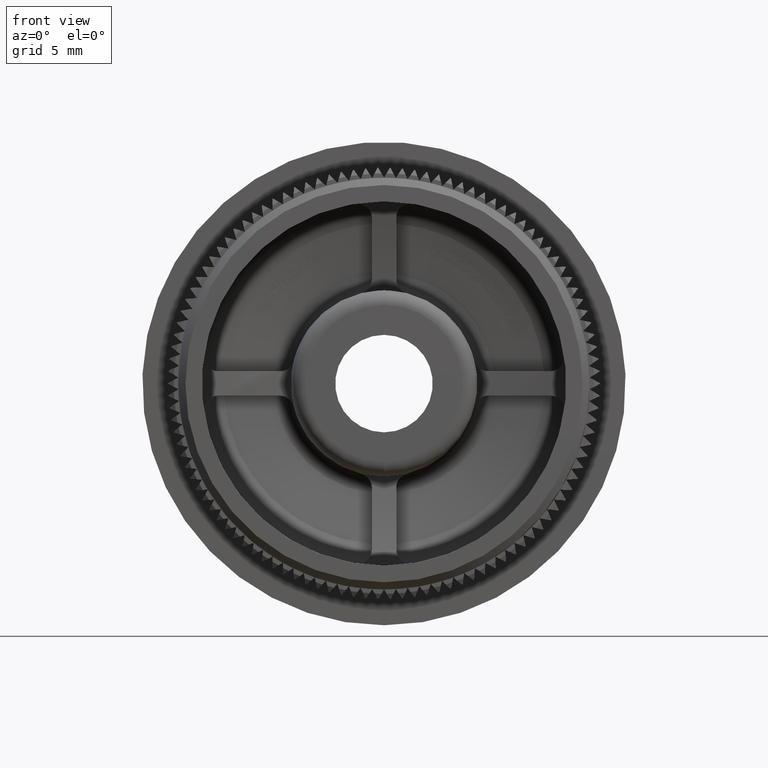
[diagram: clean part render]
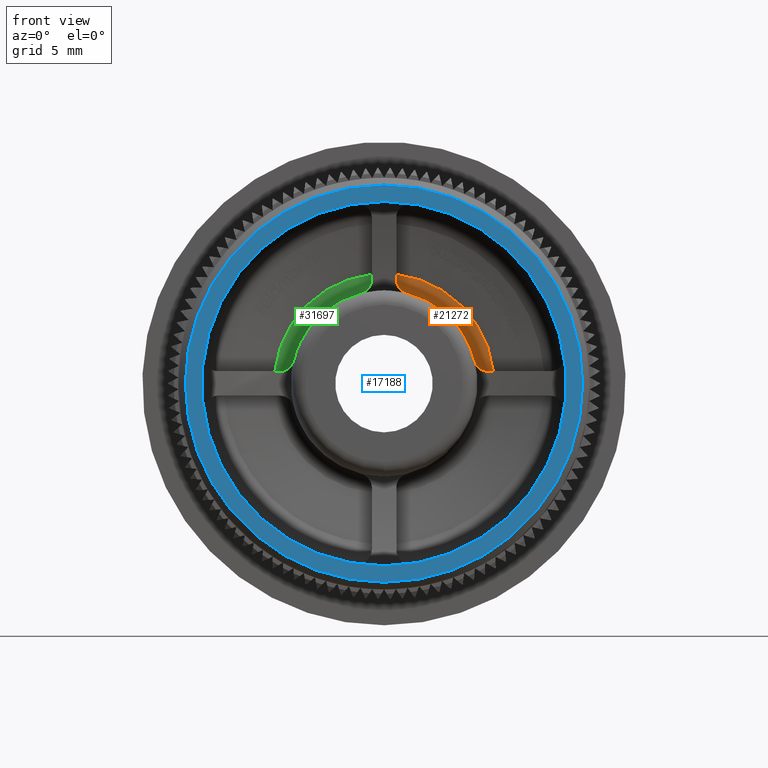
[diagram: same view with three faces highlighted in distinct colors, each labeled with its STEP entity id]
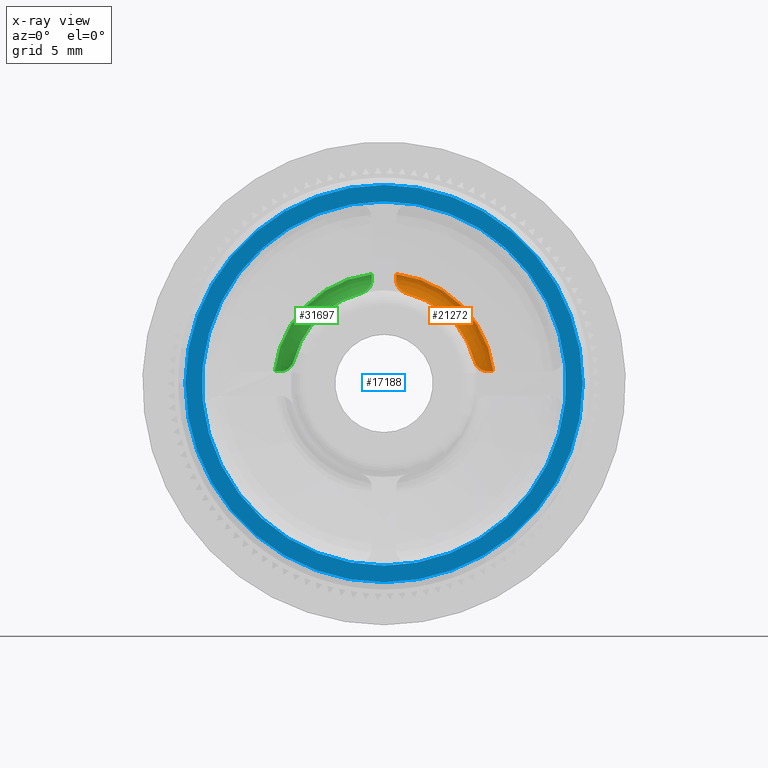
[diagram: x-ray of the same camera — body ghosted, the three highlighted faces saturated]
A machine part, front view with three faces highlighted in distinct colors.
The next image is the same camera in x-ray (body ghosted, the three faces saturated) — at least one of them is partly hidden behind the body in this view.
Their STEP definitions:

[orange] entity #21272 — the highlighted toroidal blend (fillet) surface has major radius 7.5 mm and minor (blend) radius 1 mm.
#688 = CARTESIAN_POINT ( 'NONE',  ( 0.8790775798944566700, 14.77216719665394100, 6.999871553319741800 ) ) ;
#938 = CARTESIAN_POINT ( 'NONE',  ( 1.255239687825497700, 14.27056494195557000, 6.458473567425125200 ) ) ;
#1105 = B_SPLINE_CURVE_WITH_KNOTS ( 'NONE', 3,
 ( #3388, #9328, #24408, #15303 ),
 .UNSPECIFIED., .F., .F.,
 ( 4, 4 ),
 ( 1.734723475976807100E-018, 0.0003518477657030654300 ),
 .UNSPECIFIED. ) ;
#1984 = DIRECTION ( 'NONE',  ( 0.0000000000000000000, 0.0000000000000000000, -1.000000000000000000 ) ) ;
#2090 = CARTESIAN_POINT ( 'NONE',  ( 6.299152500314804100, 13.86804053851165000, 1.603333333333333700 ) ) ;
#2591 = AXIS2_PLACEMENT_3D ( 'NONE', #9323, #36571, #6267 ) ;
#3388 = CARTESIAN_POINT ( 'NONE',  ( 7.620073336015035900, 14.85394072622485800, 0.8499999999999999800 ) ) ;
#3661 = CIRCLE ( 'NONE', #2591, 6.500000000000000900 ) ;
#3673 = CARTESIAN_POINT ( 'NONE',  ( 0.9714209832405628100, 14.63364727797940800, 6.775487427223492200 ) ) ;
#4189 = CIRCLE ( 'NONE', #7092, 7.667334455092414700 ) ;
#5700 = TOROIDAL_SURFACE ( 'NONE', #8429, 7.500000000000000900, 1.000000000000000000 ) ;
#6267 = DIRECTION ( 'NONE',  ( 0.0000000000000000000, 0.0000000000000000000, -1.000000000000000000 ) ) ;
#7040 = VERTEX_POINT ( 'NONE', #14613 ) ;
#7092 = AXIS2_PLACEMENT_3D ( 'NONE', #29444, #11308, #8707 ) ;
#7235 = CARTESIAN_POINT ( 'NONE',  ( 1.603333333333335100, 13.86804053851165000, 6.299152500314802300 ) ) ;
#7800 = CARTESIAN_POINT ( 'NONE',  ( 7.129028428376815700, 14.82567368482291700, 0.8499999999999997600 ) ) ;
#8429 = AXIS2_PLACEMENT_3D ( 'NONE', #13786, #10532, #1984 ) ;
#8707 = DIRECTION ( 'NONE',  ( 0.0000000000000000000, 0.0000000000000000000, -1.000000000000000000 ) ) ;
#8975 = EDGE_CURVE ( 'NONE', #9997, #9363, #1105, .T. ) ;
#9250 = CARTESIAN_POINT ( 'NONE',  ( 0.8500000000000020900, 14.85129953738535500, 7.268252884978568100 ) ) ;
#9323 = CARTESIAN_POINT ( 'NONE',  ( 0.0000000000000000000, 13.86804053851165000, 0.0000000000000000000 ) ) ;
#9328 = CARTESIAN_POINT ( 'NONE',  ( 7.502758279134808600, 14.87372959292794900, 0.8500000000000002000 ) ) ;
#9363 = VERTEX_POINT ( 'NONE', #11455 ) ;
#9482 = CARTESIAN_POINT ( 'NONE',  ( 1.175453291360995900, 14.36849673847160400, 6.522503219253547300 ) ) ;
#9515 = B_SPLINE_CURVE_WITH_KNOTS ( 'NONE', 3,
 ( #16673, #16546, #37553, #19564, #25773, #10945, #7800, #16928 ),
 .UNSPECIFIED., .F., .F.,
 ( 4, 2, 2, 4 ),
 ( -6.324562137052363300E-006, 0.0008268389205757691400, 0.001243420661932181700, 0.001660002403288594200 ),
 .UNSPECIFIED. ) ;
#9955 = FACE_OUTER_BOUND ( 'NONE', #15020, .T. ) ;
#9997 = VERTEX_POINT ( 'NONE', #15050 ) ;
#10532 = DIRECTION ( 'NONE',  ( -0.0000000000000000000, -1.000000000000000000, -0.0000000000000000000 ) ) ;
#10945 = CARTESIAN_POINT ( 'NONE',  ( 6.999871002189516700, 14.77216696646000900, 0.8790777049772148200 ) ) ;
#11308 = DIRECTION ( 'NONE',  ( 0.0000000000000000000, 1.000000000000000000, 0.0000000000000000000 ) ) ;
#11455 = CARTESIAN_POINT ( 'NONE',  ( 7.268252884978301700, 14.85129953738530700, 0.8499999999999999800 ) ) ;
#12465 = EDGE_CURVE ( 'NONE', #31879, #16942, #22263, .T. ) ;
#13786 = CARTESIAN_POINT ( 'NONE',  ( 0.0000000000000000000, 13.86804053851771500, 0.0000000000000000000 ) ) ;
#13910 = CARTESIAN_POINT ( 'NONE',  ( 0.8500000000000020900, 14.85129953738535500, 7.268252884978568100 ) ) ;
#14613 = CARTESIAN_POINT ( 'NONE',  ( 0.8500000000000020900, 14.85394072622485800, 7.620073336015036800 ) ) ;
#15020 = EDGE_LOOP ( 'NONE', ( #31377, #19279, #37700, #31895, #38473, #28201 ) ) ;
#15050 = CARTESIAN_POINT ( 'NONE',  ( 7.620073336015035900, 14.85394072622485800, 0.8499999999999999800 ) ) ;
#15303 = CARTESIAN_POINT ( 'NONE',  ( 7.268252884978301700, 14.85129953738530700, 0.8499999999999999800 ) ) ;
#15735 = CARTESIAN_POINT ( 'NONE',  ( 1.422640335576024700, 14.07197896892791700, 6.358942107906917900 ) ) ;
#16546 = CARTESIAN_POINT ( 'NONE',  ( 6.345830554578243200, 14.07131176089800000, 1.419945277892556800 ) ) ;
#16673 = CARTESIAN_POINT ( 'NONE',  ( 6.299152500314804100, 13.86804053851165000, 1.603333333333333700 ) ) ;
#16916 = CARTESIAN_POINT ( 'NONE',  ( 0.8500000000000020900, 14.87268343585587100, 7.384430937487708800 ) ) ;
#16928 = CARTESIAN_POINT ( 'NONE',  ( 7.268252884978301700, 14.85129953738530700, 0.8499999999999999800 ) ) ;
#16942 = VERTEX_POINT ( 'NONE', #7235 ) ;
#17446 = CARTESIAN_POINT ( 'NONE',  ( 0.8500000000000020900, 14.85394072622485800, 7.620073336015036800 ) ) ;
#18876 = CARTESIAN_POINT ( 'NONE',  ( 1.511588002755060600, 13.96973301488860600, 6.322504585644770400 ) ) ;
#19279 = ORIENTED_EDGE ( 'NONE', *, *, #19343, .T. ) ;
#19343 = EDGE_CURVE ( 'NONE', #35512, #9363, #9515, .T. ) ;
#19564 = CARTESIAN_POINT ( 'NONE',  ( 6.679878287175380800, 14.54878761127260700, 1.034542339558018900 ) ) ;
#21272 = ADVANCED_FACE ( 'NONE', ( #9955 ), #5700, .F. ) ;
#21518 = CARTESIAN_POINT ( 'NONE',  ( 0.8500000000000019800, 14.82567373941845500, 7.129028724992384300 ) ) ;
#22263 = B_SPLINE_CURVE_WITH_KNOTS ( 'NONE', 3,
 ( #27942, #21518, #688, #3673, #27686, #9482, #938, #15735, #18876, #36740 ),
 .UNSPECIFIED., .F., .F.,
 ( 4, 2, 2, 2, 4 ),
 ( 4.734389488721271400E-017, 0.0004168148190684897900, 0.0008336296381369323000, 0.001250444457205374500, 0.001667259276273817100 ),
 .UNSPECIFIED. ) ;
#24408 = CARTESIAN_POINT ( 'NONE',  ( 7.385032248118837300, 14.87279411395049200, 0.8499999999999999800 ) ) ;
#25773 = CARTESIAN_POINT ( 'NONE',  ( 6.775486544210340700, 14.63364662282737200, 0.9714214483681171700 ) ) ;
#26541 = CARTESIAN_POINT ( 'NONE',  ( 0.8500000000000022000, 14.87372012914404500, 7.502814383682113500 ) ) ;
#27686 = CARTESIAN_POINT ( 'NONE',  ( 1.034541662790500400, 14.54878851291676200, 6.679879256796419400 ) ) ;
#27942 = CARTESIAN_POINT ( 'NONE',  ( 0.8500000000000020900, 14.85129953738535500, 7.268252884978568100 ) ) ;
#28201 = ORIENTED_EDGE ( 'NONE', *, *, #12465, .T. ) ;
#29444 = CARTESIAN_POINT ( 'NONE',  ( 0.0000000000000000000, 14.85394072622484400, 0.0000000000000000000 ) ) ;
#31377 = ORIENTED_EDGE ( 'NONE', *, *, #38152, .F. ) ;
#31879 = VERTEX_POINT ( 'NONE', #9250 ) ;
#31895 = ORIENTED_EDGE ( 'NONE', *, *, #37402, .F. ) ;
#33673 = EDGE_CURVE ( 'NONE', #31879, #7040, #35440, .T. ) ;
#35440 = B_SPLINE_CURVE_WITH_KNOTS ( 'NONE', 3,
 ( #13910, #16916, #26541, #17446 ),
 .UNSPECIFIED., .F., .F.,
 ( 4, 4 ),
 ( 0.001385207896104129300, 0.001736940897184749200 ),
 .UNSPECIFIED. ) ;
#35512 = VERTEX_POINT ( 'NONE', #2090 ) ;
#36571 = DIRECTION ( 'NONE',  ( -0.0000000000000000000, -1.000000000000000000, -0.0000000000000000000 ) ) ;
#36740 = CARTESIAN_POINT ( 'NONE',  ( 1.603333333333335100, 13.86804053851165000, 6.299152500314802300 ) ) ;
#37402 = EDGE_CURVE ( 'NONE', #7040, #9997, #4189, .T. ) ;
#37553 = CARTESIAN_POINT ( 'NONE',  ( 6.443814122135171000, 14.27834919754909000, 1.245910454008940300 ) ) ;
#37700 = ORIENTED_EDGE ( 'NONE', *, *, #8975, .F. ) ;
#38152 = EDGE_CURVE ( 'NONE', #35512, #16942, #3661, .T. ) ;
#38473 = ORIENTED_EDGE ( 'NONE', *, *, #33673, .F. ) ;

[blue] entity #17188 — the highlighted planar face has unit normal (0, -1, -0).
#3899 = DIRECTION ( 'NONE',  ( -0.0000000000000000000, -1.000000000000000000, -0.0000000000000000000 ) ) ;
#4029 = CARTESIAN_POINT ( 'NONE',  ( 0.0000000000000000000, 0.0000000000000000000, 0.0000000000000000000 ) ) ;
#4547 = DIRECTION ( 'NONE',  ( 0.0000000000000000000, 0.0000000000000000000, -1.000000000000000000 ) ) ;
#5172 = ORIENTED_EDGE ( 'NONE', *, *, #38239, .F. ) ;
#6476 = CIRCLE ( 'NONE', #10141, 13.84999999999999400 ) ;
#7960 = ORIENTED_EDGE ( 'NONE', *, *, #38341, .T. ) ;
#10141 = AXIS2_PLACEMENT_3D ( 'NONE', #10467, #13456, #4547 ) ;
#10467 = CARTESIAN_POINT ( 'NONE',  ( 0.0000000000000000000, 0.0000000000000000000, 0.0000000000000000000 ) ) ;
#13125 = CARTESIAN_POINT ( 'NONE',  ( 0.0000000000000000000, 0.0000000000000000000, -13.84999999999999400 ) ) ;
#13456 = DIRECTION ( 'NONE',  ( -0.0000000000000000000, -1.000000000000000000, -0.0000000000000000000 ) ) ;
#14048 = EDGE_LOOP ( 'NONE', ( #7960 ) ) ;
#14873 = AXIS2_PLACEMENT_3D ( 'NONE', #4029, #3899, #33951 ) ;
#17188 = ADVANCED_FACE ( 'NONE', ( #34576, #36883 ), #18190, .T. ) ;
#18190 = PLANE ( 'NONE',  #32201 ) ;
#20057 = VERTEX_POINT ( 'NONE', #13125 ) ;
#21223 = DIRECTION ( 'NONE',  ( 0.0000000000000000000, 0.0000000000000000000, -1.000000000000000000 ) ) ;
#22326 = CARTESIAN_POINT ( 'NONE',  ( 0.0000000000000000000, 0.0000000000000000000, -12.69999999999999900 ) ) ;
#24019 = CARTESIAN_POINT ( 'NONE',  ( 14.35000000000000000, 0.0000000000000000000, 0.0000000000000000000 ) ) ;
#24047 = EDGE_LOOP ( 'NONE', ( #5172 ) ) ;
#24350 = CIRCLE ( 'NONE', #14873, 12.69999999999999900 ) ;
#28065 = VERTEX_POINT ( 'NONE', #22326 ) ;
#32201 = AXIS2_PLACEMENT_3D ( 'NONE', #24019, #36193, #21223 ) ;
#33951 = DIRECTION ( 'NONE',  ( 0.0000000000000000000, 0.0000000000000000000, -1.000000000000000000 ) ) ;
#34576 = FACE_BOUND ( 'NONE', #24047, .T. ) ;
#36193 = DIRECTION ( 'NONE',  ( 0.0000000000000000000, -1.000000000000000000, -0.0000000000000000000 ) ) ;
#36883 = FACE_OUTER_BOUND ( 'NONE', #14048, .T. ) ;
#38239 = EDGE_CURVE ( 'NONE', #28065, #28065, #24350, .T. ) ;
#38341 = EDGE_CURVE ( 'NONE', #20057, #20057, #6476, .T. ) ;

[green] entity #31697 — the highlighted toroidal blend (fillet) surface has major radius 7.5 mm and minor (blend) radius 1 mm.
#383 = CARTESIAN_POINT ( 'NONE',  ( -1.245910454008939400, 14.27834919754909200, 6.443814122135169200 ) ) ;
#508 = CARTESIAN_POINT ( 'NONE',  ( -0.8499999999999978700, 14.85129953738530700, 7.268252884978301700 ) ) ;
#1225 = CARTESIAN_POINT ( 'NONE',  ( -6.522503219253549000, 14.36849673847160400, 1.175453291360993600 ) ) ;
#1377 = FACE_OUTER_BOUND ( 'NONE', #14560, .T. ) ;
#2812 = CARTESIAN_POINT ( 'NONE',  ( -7.620073336015036800, 14.85394072622485800, 0.8499999999999999800 ) ) ;
#3508 = CARTESIAN_POINT ( 'NONE',  ( -1.034542339558017800, 14.54878761127260800, 6.679878287175383500 ) ) ;
#4493 = CARTESIAN_POINT ( 'NONE',  ( -6.775487427223492200, 14.63364727797940800, 0.9714209832405611400 ) ) ;
#5411 = CARTESIAN_POINT ( 'NONE',  ( -0.8499999999999978700, 14.85129953738530700, 7.268252884978301700 ) ) ;
#5550 = CARTESIAN_POINT ( 'NONE',  ( -7.384430937487708800, 14.87268343585587100, 0.8499999999999999800 ) ) ;
#6654 = CARTESIAN_POINT ( 'NONE',  ( -0.8790777049772126000, 14.77216696646000400, 6.999871002189515000 ) ) ;
#7530 = CARTESIAN_POINT ( 'NONE',  ( -6.679879256796419400, 14.54878851291676200, 1.034541662790498600 ) ) ;
#7728 = ORIENTED_EDGE ( 'NONE', *, *, #36714, .T. ) ;
#9474 = ORIENTED_EDGE ( 'NONE', *, *, #27750, .F. ) ;
#10199 = AXIS2_PLACEMENT_3D ( 'NONE', #23484, #35411, #17271 ) ;
#11220 = TOROIDAL_SURFACE ( 'NONE', #10199, 7.500000000000000900, 1.000000000000000000 ) ;
#11230 = DIRECTION ( 'NONE',  ( -0.0000000000000000000, -1.000000000000000000, -0.0000000000000000000 ) ) ;
#11325 = ORIENTED_EDGE ( 'NONE', *, *, #34831, .F. ) ;
#11458 = CARTESIAN_POINT ( 'NONE',  ( -0.8499999999999977600, 14.85394072622485100, 7.620073336015035900 ) ) ;
#11746 = CARTESIAN_POINT ( 'NONE',  ( -7.620073336015036800, 14.85394072622485800, 0.8499999999999999800 ) ) ;
#11924 = ORIENTED_EDGE ( 'NONE', *, *, #34183, .F. ) ;
#12155 = VERTEX_POINT ( 'NONE', #38316 ) ;
#12168 = CARTESIAN_POINT ( 'NONE',  ( -1.419945277890081200, 14.07131176089562700, 6.345830554578875600 ) ) ;
#13406 = CARTESIAN_POINT ( 'NONE',  ( -7.268252884978568100, 14.85129953738535500, 0.8499999999999999800 ) ) ;
#13528 = CARTESIAN_POINT ( 'NONE',  ( -6.358942107906917900, 14.07197896892791700, 1.422640335576023500 ) ) ;
#13787 = B_SPLINE_CURVE_WITH_KNOTS ( 'NONE', 3,
 ( #13406, #19433, #37167, #4493, #7530, #1225, #31531, #13528, #37550, #19562 ),
 .UNSPECIFIED., .F., .F.,
 ( 4, 2, 2, 2, 4 ),
 ( 4.734389488721271400E-017, 0.0004168148190684896300, 0.0008336296381369319800, 0.001250444457205374100, 0.001667259276273816500 ),
 .UNSPECIFIED. ) ;
#13831 = VERTEX_POINT ( 'NONE', #11746 ) ;
#14335 = CARTESIAN_POINT ( 'NONE',  ( -7.268252884978568100, 14.85129953738535500, 0.8499999999999999800 ) ) ;
#14536 = ORIENTED_EDGE ( 'NONE', *, *, #31597, .T. ) ;
#14560 = EDGE_LOOP ( 'NONE', ( #11325, #14536, #9474, #7728, #17530, #11924 ) ) ;
#14665 = CIRCLE ( 'NONE', #22450, 6.500000000000000900 ) ;
#16336 = CARTESIAN_POINT ( 'NONE',  ( -7.268252884978568100, 14.85129953738535500, 0.8499999999999999800 ) ) ;
#16389 = B_SPLINE_CURVE_WITH_KNOTS ( 'NONE', 3,
 ( #35935, #12168, #383, #3508, #24397, #6654, #21605, #508 ),
 .UNSPECIFIED., .F., .F.,
 ( 4, 2, 2, 4 ),
 ( -6.324562137052852900E-006, 0.0008268389205757713100, 0.001243420661932181700, 0.001660002403288592200 ),
 .UNSPECIFIED. ) ;
#17271 = DIRECTION ( 'NONE',  ( 0.0000000000000000000, 0.0000000000000000000, -1.000000000000000000 ) ) ;
#17530 = ORIENTED_EDGE ( 'NONE', *, *, #22198, .F. ) ;
#17956 = CARTESIAN_POINT ( 'NONE',  ( -0.8499999999999978700, 14.85129953738530700, 7.268252884978301700 ) ) ;
#19433 = CARTESIAN_POINT ( 'NONE',  ( -7.129028724992384300, 14.82567373941845500, 0.8499999999999998700 ) ) ;
#19562 = CARTESIAN_POINT ( 'NONE',  ( -6.299152500314804100, 13.86804053851165000, 1.603333333333333700 ) ) ;
#20162 = VERTEX_POINT ( 'NONE', #16336 ) ;
#20267 = DIRECTION ( 'NONE',  ( 0.0000000000000000000, 0.0000000000000000000, -1.000000000000000000 ) ) ;
#21337 = AXIS2_PLACEMENT_3D ( 'NONE', #37656, #25868, #26003 ) ;
#21605 = CARTESIAN_POINT ( 'NONE',  ( -0.8499999999999975400, 14.82567368482291500, 7.129028428376815700 ) ) ;
#21669 = VERTEX_POINT ( 'NONE', #25587 ) ;
#22198 = EDGE_CURVE ( 'NONE', #26470, #25363, #31841, .T. ) ;
#22450 = AXIS2_PLACEMENT_3D ( 'NONE', #32103, #11230, #20267 ) ;
#23430 = CARTESIAN_POINT ( 'NONE',  ( -0.8499999999999970900, 14.87372959292796000, 7.502758279134809500 ) ) ;
#23484 = CARTESIAN_POINT ( 'NONE',  ( 0.0000000000000000000, 13.86804053851771500, 0.0000000000000000000 ) ) ;
#24397 = CARTESIAN_POINT ( 'NONE',  ( -0.9714214483681159500, 14.63364662282737800, 6.775486544210342500 ) ) ;
#25363 = VERTEX_POINT ( 'NONE', #17956 ) ;
#25587 = CARTESIAN_POINT ( 'NONE',  ( -1.603333333333331700, 13.86804053851165000, 6.299152500314803200 ) ) ;
#25868 = DIRECTION ( 'NONE',  ( 0.0000000000000000000, 1.000000000000000000, 0.0000000000000000000 ) ) ;
#26003 = DIRECTION ( 'NONE',  ( 0.0000000000000000000, 0.0000000000000000000, -1.000000000000000000 ) ) ;
#26470 = VERTEX_POINT ( 'NONE', #37288 ) ;
#26764 = B_SPLINE_CURVE_WITH_KNOTS ( 'NONE', 3,
 ( #14335, #5550, #38482, #2812 ),
 .UNSPECIFIED., .F., .F.,
 ( 4, 4 ),
 ( 0.001385207896104128900, 0.001736940897184748800 ),
 .UNSPECIFIED. ) ;
#27750 = EDGE_CURVE ( 'NONE', #21669, #12155, #14665, .T. ) ;
#31531 = CARTESIAN_POINT ( 'NONE',  ( -6.458473567425124400, 14.27056494195557000, 1.255239687825496100 ) ) ;
#31597 = EDGE_CURVE ( 'NONE', #20162, #12155, #13787, .T. ) ;
#31697 = ADVANCED_FACE ( 'NONE', ( #1377 ), #11220, .F. ) ;
#31841 = B_SPLINE_CURVE_WITH_KNOTS ( 'NONE', 3,
 ( #11458, #23430, #32470, #5411 ),
 .UNSPECIFIED., .F., .F.,
 ( 4, 4 ),
 ( 8.673617379884035500E-019, 0.0003518477657030680800 ),
 .UNSPECIFIED. ) ;
#32103 = CARTESIAN_POINT ( 'NONE',  ( 0.0000000000000000000, 13.86804053851165000, 0.0000000000000000000 ) ) ;
#32470 = CARTESIAN_POINT ( 'NONE',  ( -0.8499999999999978700, 14.87279411395049200, 7.385032248118838200 ) ) ;
#34183 = EDGE_CURVE ( 'NONE', #13831, #26470, #37155, .T. ) ;
#34831 = EDGE_CURVE ( 'NONE', #20162, #13831, #26764, .T. ) ;
#35411 = DIRECTION ( 'NONE',  ( -0.0000000000000000000, -1.000000000000000000, -0.0000000000000000000 ) ) ;
#35935 = CARTESIAN_POINT ( 'NONE',  ( -1.603333333333331700, 13.86804053851165000, 6.299152500314803200 ) ) ;
#36714 = EDGE_CURVE ( 'NONE', #21669, #25363, #16389, .T. ) ;
#37155 = CIRCLE ( 'NONE', #21337, 7.667334455092414700 ) ;
#37167 = CARTESIAN_POINT ( 'NONE',  ( -6.999871553319741800, 14.77216719665394100, 0.8790775798944552300 ) ) ;
#37288 = CARTESIAN_POINT ( 'NONE',  ( -0.8499999999999977600, 14.85394072622485100, 7.620073336015035900 ) ) ;
#37550 = CARTESIAN_POINT ( 'NONE',  ( -6.322504585644551900, 13.96973301488942800, 1.511588002755914100 ) ) ;
#37656 = CARTESIAN_POINT ( 'NONE',  ( 0.0000000000000000000, 14.85394072622484400, 0.0000000000000000000 ) ) ;
#38316 = CARTESIAN_POINT ( 'NONE',  ( -6.299152500314804100, 13.86804053851165000, 1.603333333333333700 ) ) ;
#38482 = CARTESIAN_POINT ( 'NONE',  ( -7.502814383682113500, 14.87372012914404500, 0.8499999999999999800 ) ) ;